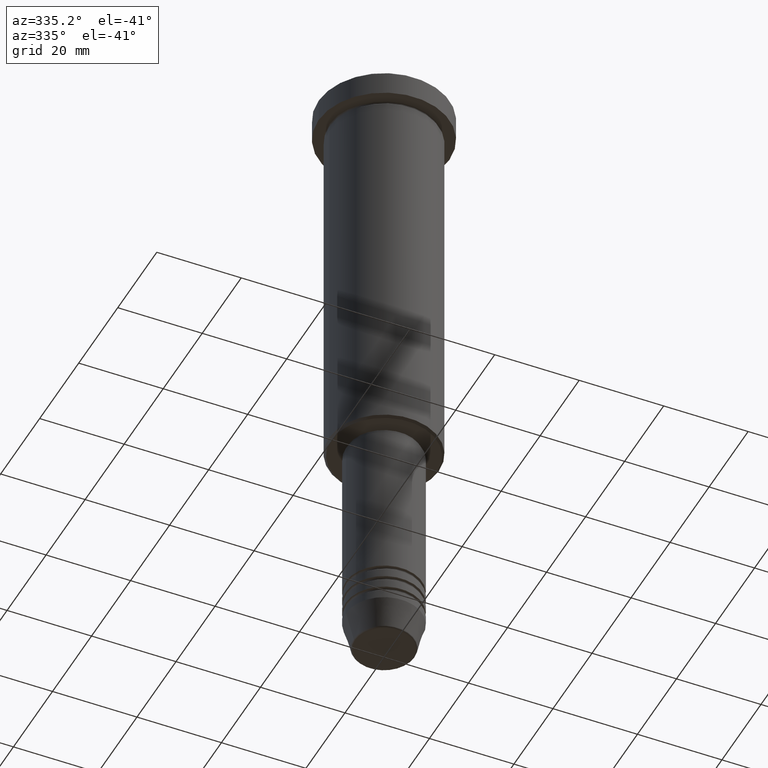
[diagram: clean part render]
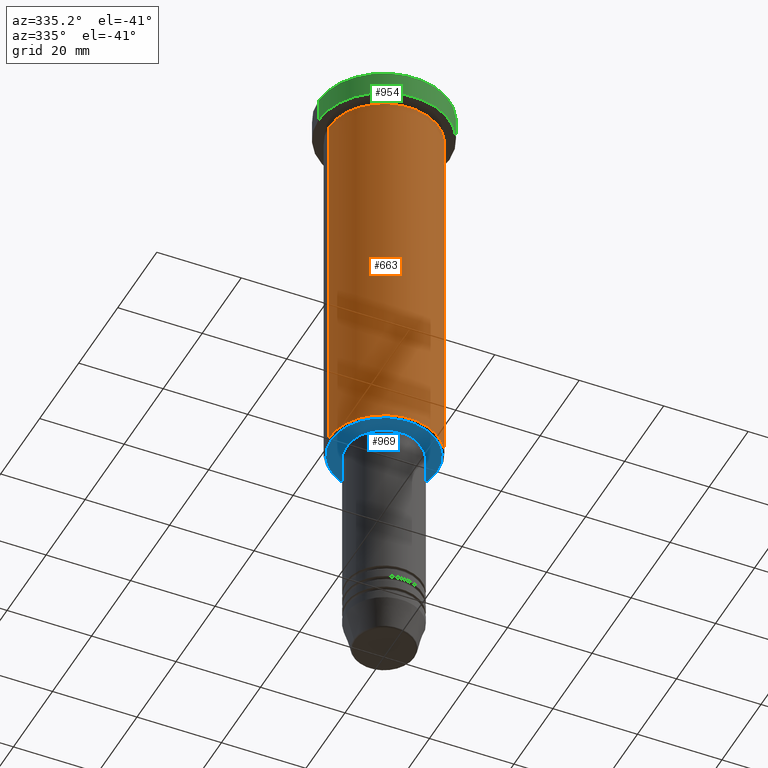
[diagram: same view with three faces highlighted in distinct colors, each labeled with its STEP entity id]
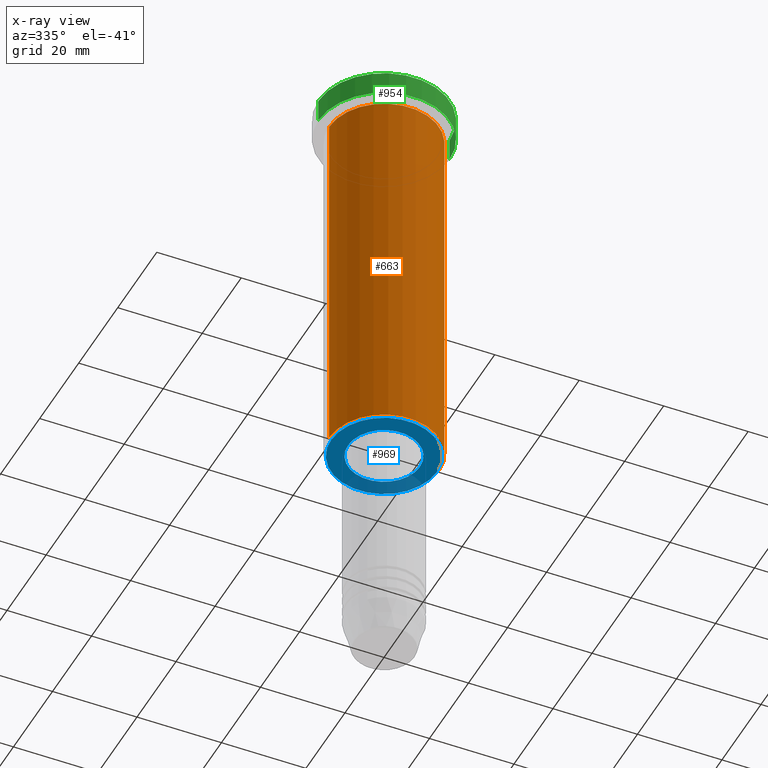
[diagram: x-ray of the same camera — body ghosted, the three highlighted faces saturated]
A machine part, auxiliary view with three faces highlighted in distinct colors.
The next image is the same camera in x-ray (body ghosted, the three faces saturated) — at least one of them is partly hidden behind the body in this view.
Their STEP definitions:

[orange] entity #663 — the highlighted cylindrical surface (partial cylindrical patch) has radius 13 mm, axis along (-0, -0, 1).
#23 = EDGE_CURVE ( 'NONE', #1113, #544, #371, .T. ) ;
#26 = DIRECTION ( 'NONE',  ( -0.000000000000000000, -0.000000000000000000, 1.000000000000000000 ) ) ;
#33 = VECTOR ( 'NONE', #1150, 1000.000000000000000 ) ;
#55 = LINE ( 'NONE', #796, #33 ) ;
#74 = ORIENTED_EDGE ( 'NONE', *, *, #23, .F. ) ;
#78 = CARTESIAN_POINT ( 'NONE',  ( 0.000000000000000000, 0.000000000000000000, -6.999999999999995559 ) ) ;
#88 = CIRCLE ( 'NONE', #1159, 13.00000000000000000 ) ;
#113 = CYLINDRICAL_SURFACE ( 'NONE', #269, 13.00000000000000000 ) ;
#137 = DIRECTION ( 'NONE',  ( -0.000000000000000000, -0.000000000000000000, 1.000000000000000000 ) ) ;
#197 = ORIENTED_EDGE ( 'NONE', *, *, #310, .T. ) ;
#206 = CARTESIAN_POINT ( 'NONE',  ( 0.000000000000000000, 0.000000000000000000, 0.000000000000000000 ) ) ;
#245 = AXIS2_PLACEMENT_3D ( 'NONE', #78, #450, #609 ) ;
#269 = AXIS2_PLACEMENT_3D ( 'NONE', #206, #26, #944 ) ;
#270 = CARTESIAN_POINT ( 'NONE',  ( 13.00000000000000000, 0.000000000000000000, -6.999999999999995559 ) ) ;
#281 = DIRECTION ( 'NONE',  ( -0.000000000000000000, -0.000000000000000000, 1.000000000000000000 ) ) ;
#309 = FACE_OUTER_BOUND ( 'NONE', #316, .T. ) ;
#310 = EDGE_CURVE ( 'NONE', #1113, #683, #88, .T. ) ;
#316 = EDGE_LOOP ( 'NONE', ( #74, #197, #835, #891 ) ) ;
#327 = CARTESIAN_POINT ( 'NONE',  ( 0.000000000000000000, 0.000000000000000000, -95.50000000000001421 ) ) ;
#371 = LINE ( 'NONE', #1091, #621 ) ;
#404 = CARTESIAN_POINT ( 'NONE',  ( -13.00000000000000000, 1.592040838891559095E-15, -95.50000000000001421 ) ) ;
#450 = DIRECTION ( 'NONE',  ( -0.000000000000000000, -0.000000000000000000, 1.000000000000000000 ) ) ;
#518 = DIRECTION ( 'NONE',  ( -1.000000000000000000, 0.000000000000000000, 0.000000000000000000 ) ) ;
#544 = VERTEX_POINT ( 'NONE', #647 ) ;
#609 = DIRECTION ( 'NONE',  ( 1.000000000000000000, 0.000000000000000000, 0.000000000000000000 ) ) ;
#621 = VECTOR ( 'NONE', #281, 1000.000000000000000 ) ;
#647 = CARTESIAN_POINT ( 'NONE',  ( -13.00000000000000000, 1.592040838891559095E-15, -6.999999999999995559 ) ) ;
#663 = ADVANCED_FACE ( 'NONE', ( #309 ), #113, .T. ) ;
#668 = CARTESIAN_POINT ( 'NONE',  ( 13.00000000000000000, 0.000000000000000000, -95.50000000000001421 ) ) ;
#683 = VERTEX_POINT ( 'NONE', #668 ) ;
#796 = CARTESIAN_POINT ( 'NONE',  ( 13.00000000000000000, 0.000000000000000000, 0.000000000000000000 ) ) ;
#835 = ORIENTED_EDGE ( 'NONE', *, *, #1175, .T. ) ;
#891 = ORIENTED_EDGE ( 'NONE', *, *, #1167, .F. ) ;
#920 = CIRCLE ( 'NONE', #245, 13.00000000000000000 ) ;
#944 = DIRECTION ( 'NONE',  ( 1.000000000000000000, 0.000000000000000000, 0.000000000000000000 ) ) ;
#982 = VERTEX_POINT ( 'NONE', #270 ) ;
#1091 = CARTESIAN_POINT ( 'NONE',  ( -13.00000000000000000, 1.592040838891559095E-15, 0.000000000000000000 ) ) ;
#1113 = VERTEX_POINT ( 'NONE', #404 ) ;
#1150 = DIRECTION ( 'NONE',  ( -0.000000000000000000, -0.000000000000000000, 1.000000000000000000 ) ) ;
#1159 = AXIS2_PLACEMENT_3D ( 'NONE', #327, #137, #518 ) ;
#1167 = EDGE_CURVE ( 'NONE', #544, #982, #920, .T. ) ;
#1175 = EDGE_CURVE ( 'NONE', #683, #982, #55, .T. ) ;

[blue] entity #969 — the highlighted planar face has unit normal (0, 0, -1).
#50 = EDGE_LOOP ( 'NONE', ( #603, #205 ) ) ;
#53 = CARTESIAN_POINT ( 'NONE',  ( 0.000000000000000000, 0.000000000000000000, -96.00000000000000000 ) ) ;
#173 = CARTESIAN_POINT ( 'NONE',  ( 0.000000000000000000, 0.000000000000000000, -96.00000000000000000 ) ) ;
#187 = DIRECTION ( 'NONE',  ( -1.000000000000000000, 0.000000000000000000, 0.000000000000000000 ) ) ;
#201 = CIRCLE ( 'NONE', #902, 12.50000000000002487 ) ;
#205 = ORIENTED_EDGE ( 'NONE', *, *, #918, .T. ) ;
#247 = EDGE_CURVE ( 'NONE', #430, #740, #555, .T. ) ;
#285 = AXIS2_PLACEMENT_3D ( 'NONE', #173, #364, #818 ) ;
#354 = FACE_BOUND ( 'NONE', #50, .T. ) ;
#364 = DIRECTION ( 'NONE',  ( 0.000000000000000000, 0.000000000000000000, -1.000000000000000000 ) ) ;
#430 = VERTEX_POINT ( 'NONE', #597 ) ;
#469 = DIRECTION ( 'NONE',  ( 0.000000000000000000, 0.000000000000000000, -1.000000000000000000 ) ) ;
#470 = EDGE_CURVE ( 'NONE', #492, #483, #201, .T. ) ;
#483 = VERTEX_POINT ( 'NONE', #638 ) ;
#492 = VERTEX_POINT ( 'NONE', #999 ) ;
#501 = EDGE_CURVE ( 'NONE', #483, #492, #1180, .T. ) ;
#530 = ORIENTED_EDGE ( 'NONE', *, *, #470, .T. ) ;
#535 = DIRECTION ( 'NONE',  ( -0.000000000000000000, -0.000000000000000000, 1.000000000000000000 ) ) ;
#555 = CIRCLE ( 'NONE', #823, 8.499999999999998224 ) ;
#569 = CARTESIAN_POINT ( 'NONE',  ( 0.000000000000000000, 13.00000000000000000, -96.00000000000000000 ) ) ;
#597 = CARTESIAN_POINT ( 'NONE',  ( 8.499999999999998224, 0.000000000000000000, -96.00000000000000000 ) ) ;
#603 = ORIENTED_EDGE ( 'NONE', *, *, #247, .T. ) ;
#632 = DIRECTION ( 'NONE',  ( -1.000000000000000000, 0.000000000000000000, -0.000000000000000000 ) ) ;
#638 = CARTESIAN_POINT ( 'NONE',  ( 12.50000000000002487, 0.000000000000000000, -96.00000000000000000 ) ) ;
#680 = DIRECTION ( 'NONE',  ( 1.000000000000000000, 0.000000000000000000, 0.000000000000000000 ) ) ;
#695 = DIRECTION ( 'NONE',  ( 1.000000000000000000, 0.000000000000000000, 0.000000000000000000 ) ) ;
#730 = CARTESIAN_POINT ( 'NONE',  ( 0.000000000000000000, 0.000000000000000000, -96.00000000000000000 ) ) ;
#740 = VERTEX_POINT ( 'NONE', #938 ) ;
#747 = DIRECTION ( 'NONE',  ( 0.000000000000000000, 0.000000000000000000, -1.000000000000000000 ) ) ;
#767 = DIRECTION ( 'NONE',  ( -0.000000000000000000, -0.000000000000000000, 1.000000000000000000 ) ) ;
#818 = DIRECTION ( 'NONE',  ( -1.000000000000000000, 0.000000000000000000, 0.000000000000000000 ) ) ;
#823 = AXIS2_PLACEMENT_3D ( 'NONE', #856, #767, #680 ) ;
#828 = AXIS2_PLACEMENT_3D ( 'NONE', #53, #535, #695 ) ;
#839 = PLANE ( 'NONE',  #1011 ) ;
#856 = CARTESIAN_POINT ( 'NONE',  ( 0.000000000000000000, 0.000000000000000000, -96.00000000000000000 ) ) ;
#877 = EDGE_LOOP ( 'NONE', ( #1021, #530 ) ) ;
#902 = AXIS2_PLACEMENT_3D ( 'NONE', #730, #747, #187 ) ;
#918 = EDGE_CURVE ( 'NONE', #740, #430, #980, .T. ) ;
#938 = CARTESIAN_POINT ( 'NONE',  ( -8.499999999999998224, 1.040949779275249943E-15, -96.00000000000000000 ) ) ;
#969 = ADVANCED_FACE ( 'NONE', ( #994, #354 ), #839, .T. ) ;
#980 = CIRCLE ( 'NONE', #828, 8.499999999999998224 ) ;
#994 = FACE_OUTER_BOUND ( 'NONE', #877, .T. ) ;
#999 = CARTESIAN_POINT ( 'NONE',  ( -12.50000000000002487, 1.561424668912876886E-15, -96.00000000000000000 ) ) ;
#1011 = AXIS2_PLACEMENT_3D ( 'NONE', #569, #469, #632 ) ;
#1021 = ORIENTED_EDGE ( 'NONE', *, *, #501, .T. ) ;
#1180 = CIRCLE ( 'NONE', #285, 12.50000000000002487 ) ;

[green] entity #954 — the highlighted cylindrical surface (partial cylindrical patch) has radius 15.5 mm, axis along (-0, -0, 1).
#63 = VERTEX_POINT ( 'NONE', #665 ) ;
#256 = EDGE_CURVE ( 'NONE', #848, #63, #540, .T. ) ;
#257 = ORIENTED_EDGE ( 'NONE', *, *, #661, .T. ) ;
#277 = EDGE_CURVE ( 'NONE', #709, #63, #505, .T. ) ;
#349 = FACE_OUTER_BOUND ( 'NONE', #1124, .T. ) ;
#356 = CIRCLE ( 'NONE', #860, 15.50000000000000000 ) ;
#367 = CARTESIAN_POINT ( 'NONE',  ( 0.000000000000000000, 0.000000000000000000, -5.999999999999995559 ) ) ;
#410 = CARTESIAN_POINT ( 'NONE',  ( -15.50000000000000000, 1.898202538678397557E-15, 0.000000000000000000 ) ) ;
#425 = CARTESIAN_POINT ( 'NONE',  ( 15.50000000000000000, 0.000000000000000000, 0.000000000000000000 ) ) ;
#427 = DIRECTION ( 'NONE',  ( 1.000000000000000000, 0.000000000000000000, 0.000000000000000000 ) ) ;
#428 = ORIENTED_EDGE ( 'NONE', *, *, #966, .T. ) ;
#456 = AXIS2_PLACEMENT_3D ( 'NONE', #525, #721, #427 ) ;
#462 = DIRECTION ( 'NONE',  ( -0.000000000000000000, -0.000000000000000000, 1.000000000000000000 ) ) ;
#505 = LINE ( 'NONE', #410, #764 ) ;
#525 = CARTESIAN_POINT ( 'NONE',  ( 0.000000000000000000, 0.000000000000000000, -0.5000000000000264233 ) ) ;
#540 = CIRCLE ( 'NONE', #456, 15.50000000000000000 ) ;
#564 = CARTESIAN_POINT ( 'NONE',  ( 0.000000000000000000, 0.000000000000000000, 0.000000000000000000 ) ) ;
#589 = CARTESIAN_POINT ( 'NONE',  ( 15.50000000000000000, 0.000000000000000000, -5.999999999999995559 ) ) ;
#598 = ORIENTED_EDGE ( 'NONE', *, *, #277, .F. ) ;
#606 = DIRECTION ( 'NONE',  ( -0.000000000000000000, -0.000000000000000000, 1.000000000000000000 ) ) ;
#616 = DIRECTION ( 'NONE',  ( -0.000000000000000000, -0.000000000000000000, 1.000000000000000000 ) ) ;
#648 = VERTEX_POINT ( 'NONE', #589 ) ;
#651 = DIRECTION ( 'NONE',  ( -0.000000000000000000, -0.000000000000000000, 1.000000000000000000 ) ) ;
#661 = EDGE_CURVE ( 'NONE', #648, #848, #885, .T. ) ;
#662 = ORIENTED_EDGE ( 'NONE', *, *, #256, .T. ) ;
#665 = CARTESIAN_POINT ( 'NONE',  ( -15.50000000000000000, 1.898202538678397557E-15, -0.5000000000000264233 ) ) ;
#709 = VERTEX_POINT ( 'NONE', #801 ) ;
#721 = DIRECTION ( 'NONE',  ( 0.000000000000000000, 0.000000000000000000, -1.000000000000000000 ) ) ;
#742 = DIRECTION ( 'NONE',  ( 1.000000000000000000, 0.000000000000000000, 0.000000000000000000 ) ) ;
#764 = VECTOR ( 'NONE', #606, 1000.000000000000000 ) ;
#801 = CARTESIAN_POINT ( 'NONE',  ( -15.50000000000000000, 1.898202538678397557E-15, -5.999999999999995559 ) ) ;
#848 = VERTEX_POINT ( 'NONE', #881 ) ;
#860 = AXIS2_PLACEMENT_3D ( 'NONE', #367, #651, #742 ) ;
#881 = CARTESIAN_POINT ( 'NONE',  ( 15.50000000000000000, 0.000000000000000000, -0.5000000000000264233 ) ) ;
#885 = LINE ( 'NONE', #425, #1099 ) ;
#900 = AXIS2_PLACEMENT_3D ( 'NONE', #564, #462, #932 ) ;
#932 = DIRECTION ( 'NONE',  ( 1.000000000000000000, 0.000000000000000000, 0.000000000000000000 ) ) ;
#954 = ADVANCED_FACE ( 'NONE', ( #349 ), #1173, .T. ) ;
#966 = EDGE_CURVE ( 'NONE', #709, #648, #356, .T. ) ;
#1099 = VECTOR ( 'NONE', #616, 1000.000000000000000 ) ;
#1124 = EDGE_LOOP ( 'NONE', ( #598, #428, #257, #662 ) ) ;
#1173 = CYLINDRICAL_SURFACE ( 'NONE', #900, 15.50000000000000000 ) ;